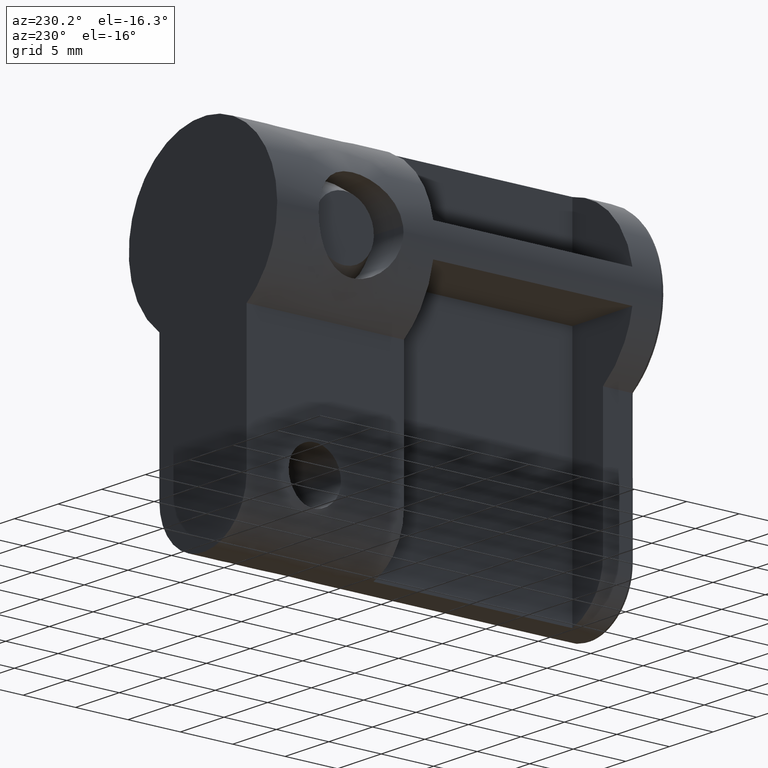
[diagram: clean part render]
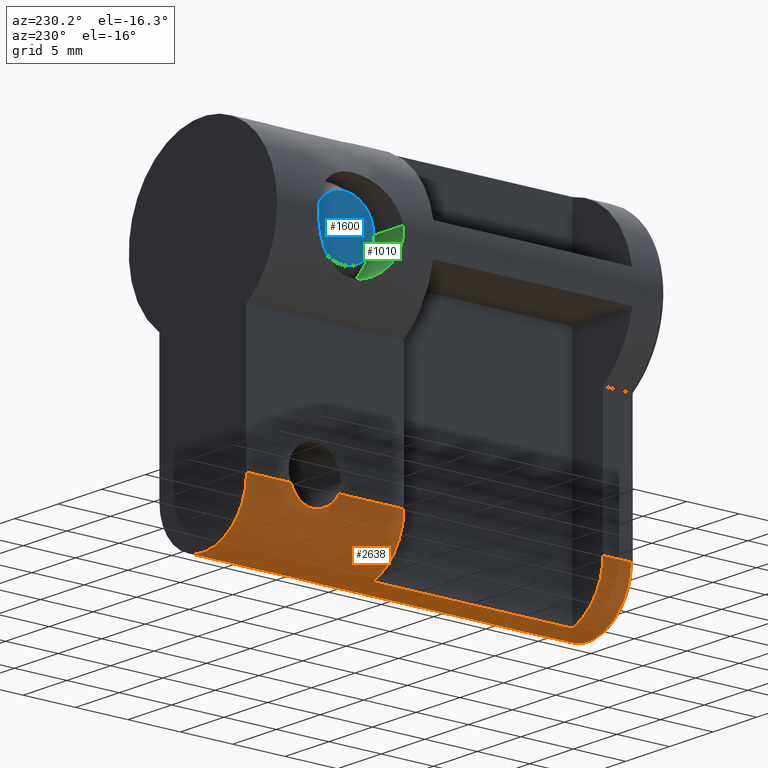
[diagram: same view with three faces highlighted in distinct colors, each labeled with its STEP entity id]
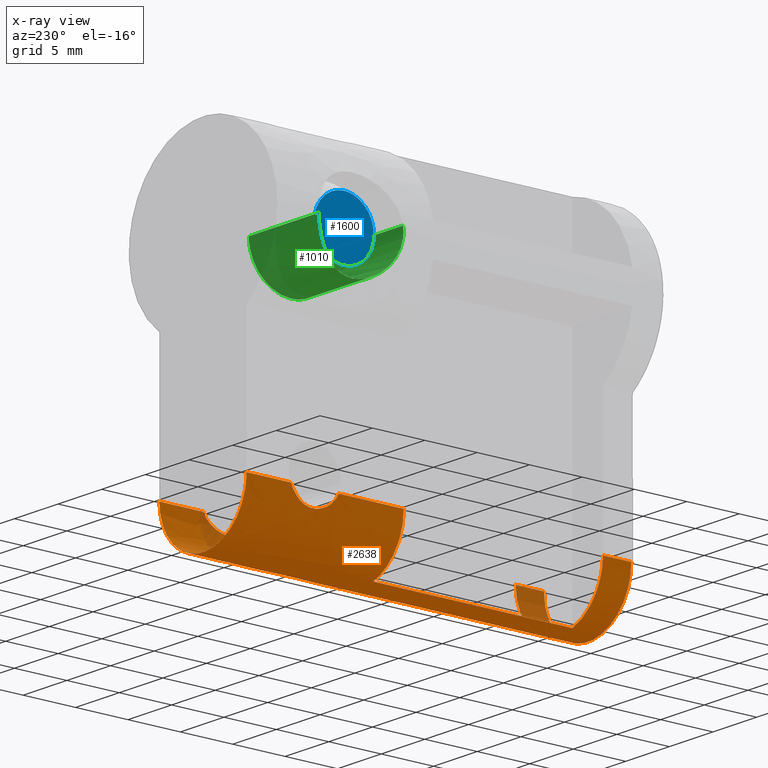
[diagram: x-ray of the same camera — body ghosted, the three highlighted faces saturated]
A machine part, auxiliary view with three faces highlighted in distinct colors.
The next image is the same camera in x-ray (body ghosted, the three faces saturated) — at least one of them is partly hidden behind the body in this view.
Their STEP definitions:

[orange] entity #2638 — the highlighted face is a freeform B-spline surface patch.
#1324=CARTESIAN_POINT('',(5.000000237487150,32.791289404893703,-19.800000940449500));
#1325=VERTEX_POINT('',#1324);
#1348=CARTESIAN_POINT('',(-5.000000237487290,32.791289404893753,-19.800000940449500));
#1349=VERTEX_POINT('',#1348);
#1363=CARTESIAN_POINT('',(-5.000000237487260,28.208713492277251,-19.800000940449500));
#1364=VERTEX_POINT('',#1363);
#1365=CARTESIAN_POINT('',(-5.000000237487280,28.208713492277202,-19.800000940449500));
#1366=CARTESIAN_POINT('',(-5.000000237487281,28.257701408327272,-19.912246357168261));
#1367=CARTESIAN_POINT('',(-4.996237284764753,28.314206020963809,-20.019348305845501));
#1368=CARTESIAN_POINT('',(-4.983057154734889,28.441559112390859,-20.223842496959829));
#1369=CARTESIAN_POINT('',(-4.973631072126937,28.512409815351131,-20.321232679426100));
#1370=CARTESIAN_POINT('',(-4.956471320625495,28.629666574999408,-20.459975160254640));
#1371=CARTESIAN_POINT('',(-4.950222079073935,28.670747119424540,-20.505138123027749));
#1372=CARTESIAN_POINT('',(-4.937122859480202,28.755410553851998,-20.591666873026810));
#1373=CARTESIAN_POINT('',(-4.930260910456302,28.799084712224420,-20.633164826705869));
#1374=CARTESIAN_POINT('',(-4.909099600053796,28.934070789566420,-20.752509637666439));
#1375=CARTESIAN_POINT('',(-4.894227001290981,29.029323833906538,-20.825236445611029));
#1376=CARTESIAN_POINT('',(-4.872113661228085,29.180258595798300,-20.924123575454988));
#1377=CARTESIAN_POINT('',(-4.864774213949248,29.231918278552872,-20.955378188896400));
#1378=CARTESIAN_POINT('',(-4.850380048809369,29.338032447457589,-21.014388901953669));
#1379=CARTESIAN_POINT('',(-4.843394156547617,29.391994594602650,-21.041864015166951));
#1380=CARTESIAN_POINT('',(-4.823443524988742,29.555889118119680,-21.118010365579199));
#1381=CARTESIAN_POINT('',(-4.811451940924974,29.668106446552400,-21.160596939982060));
#1382=CARTESIAN_POINT('',(-4.796426622942588,29.840924784769530,-21.212309775416511));
#1383=CARTESIAN_POINT('',(-4.791910351766362,29.899282393864990,-21.227511121755320));
#1384=CARTESIAN_POINT('',(-4.784014171492890,30.017545238784809,-21.253754201512951));
#1385=CARTESIAN_POINT('',(-4.780623904709782,30.077702386488561,-21.264829522648760));
#1386=CARTESIAN_POINT('',(-4.772456782851843,30.258654134931710,-21.291309059261589));
#1387=CARTESIAN_POINT('',(-4.766941355190445,30.499850779923310,-21.308675347492262));
#1388=CARTESIAN_POINT('',(-4.772445479763514,30.740906779712319,-21.291344585511030));
#1389=CARTESIAN_POINT('',(-4.780590014244322,30.921644709119679,-21.264939959012139));
#1390=CARTESIAN_POINT('',(-4.783980197936810,30.981899255908822,-21.253866070291679));
#1391=CARTESIAN_POINT('',(-4.791881427323570,31.100336475598940,-21.227608287199288));
#1392=CARTESIAN_POINT('',(-4.796402306136503,31.158783237868640,-21.212392646380628));
#1393=CARTESIAN_POINT('',(-4.811447358543230,31.331874039059599,-21.160614347897489));
#1394=CARTESIAN_POINT('',(-4.823460084846209,31.444279694161409,-21.117954298893292));
#1395=CARTESIAN_POINT('',(-4.843451368041214,31.608463283788740,-21.041642067288809));
#1396=CARTESIAN_POINT('',(-4.850467968337422,31.662635920174580,-21.014036731152970));
#1397=CARTESIAN_POINT('',(-4.864840146041358,31.768553159883201,-20.955099536431970));
#1398=CARTESIAN_POINT('',(-4.872170244510359,31.820137484080220,-20.923877529102061));
#1399=CARTESIAN_POINT('',(-4.894262155279455,31.970904990378010,-20.825065203232320));
#1400=CARTESIAN_POINT('',(-4.909129692235236,32.066124666184621,-20.752357844307419));
#1401=CARTESIAN_POINT('',(-4.930296592614642,32.201145495462647,-20.632954595753912));
#1402=CARTESIAN_POINT('',(-4.937162504549043,32.244845471195319,-20.591422529042550));
#1403=CARTESIAN_POINT('',(-4.950272407971531,32.329584194836052,-20.504788010486870));
#1404=CARTESIAN_POINT('',(-4.956515068226191,32.370628675928486,-20.459643209131269));
#1405=CARTESIAN_POINT('',(-4.973649532057092,32.487732452756823,-20.321039695619760));
#1406=CARTESIAN_POINT('',(-4.983066015278488,32.558520752207890,-20.223725944600080));
#1407=CARTESIAN_POINT('',(-4.996236877802528,32.685801597115614,-20.019333684589341));
#1408=CARTESIAN_POINT('',(-5.000000237487281,32.742296647678252,-19.912257449671760));
#1409=CARTESIAN_POINT('',(-5.000000237487280,32.791289404893703,-19.800000940449550));
#1410=B_SPLINE_CURVE_WITH_KNOTS('',3,(#1365,#1366,#1367,#1368,#1369,#1370,#1371,#1372,#1373,#1374,#1375,#1376,#1377,#1378,#1379,#1380,#1381,#1382,#1383,#1384,#1385,#1386,#1387,#1388,#1389,#1390,#1391,#1392,#1393,#1394,#1395,#1396,#1397,#1398,#1399,#1400,#1401,#1402,#1403,#1404,#1405,#1406,#1407,#1408,#1409),.UNSPECIFIED.,.F.,.U.,(4,2,2,2,2,2,2,2,2,2,2,1,2,2,2,2,2,2,2,2,2,2,4),(0.0,0.062500000000006,0.125000000000012,0.156250000000014,0.187500000000017,0.250000000000020,0.281250000000020,0.312500000000021,0.375000000000022,0.406250000000023,0.437500000000023,0.500000000000023,0.562500000000023,0.593750000000023,0.625000000000023,0.687500000000024,0.718750000000022,0.750000000000020,0.812500000000016,0.843750000000014,0.875000000000012,0.937500000000006,1.0),.UNSPECIFIED.);
#1411=EDGE_CURVE('',#1364,#1349,#1410,.T.);
#1437=CARTESIAN_POINT('',(5.000000237487280,28.208713492277251,-19.800000940449500));
#1438=VERTEX_POINT('',#1437);
#1454=CARTESIAN_POINT('',(5.000000237487150,32.791289404893703,-19.800000940449500));
#1455=CARTESIAN_POINT('',(5.000000237487279,32.742301488843601,-19.912246357168250));
#1456=CARTESIAN_POINT('',(4.996237284764752,32.685796876207178,-20.019348305845551));
#1457=CARTESIAN_POINT('',(4.983057154734884,32.558443784780117,-20.223842496959868));
#1458=CARTESIAN_POINT('',(4.973631072126931,32.487593081819831,-20.321232679426132));
#1459=CARTESIAN_POINT('',(4.956471320625489,32.370336322171561,-20.459975160254668));
#1460=CARTESIAN_POINT('',(4.950222079073929,32.329255777746432,-20.505138123027780));
#1461=CARTESIAN_POINT('',(4.937122859480194,32.244592343318978,-20.591666873026838));
#1462=CARTESIAN_POINT('',(4.930260910456294,32.200918184946531,-20.633164826705890));
#1463=CARTESIAN_POINT('',(4.909099600053792,32.065932107604553,-20.752509637666471));
#1464=CARTESIAN_POINT('',(4.894227001290975,31.970679063264441,-20.825236445611051));
#1465=CARTESIAN_POINT('',(4.872113661228081,31.819744301372669,-20.924123575455010));
#1466=CARTESIAN_POINT('',(4.864774213949245,31.768084618618111,-20.955378188896422));
#1467=CARTESIAN_POINT('',(4.850380048809367,31.661970449713369,-21.014388901953680));
#1468=CARTESIAN_POINT('',(4.843394156547611,31.608008302568329,-21.041864015166961));
#1469=CARTESIAN_POINT('',(4.823443524988736,31.444113779051289,-21.118010365579199));
#1470=CARTESIAN_POINT('',(4.811451940924972,31.331896450618562,-21.160596939982060));
#1471=CARTESIAN_POINT('',(4.796426622942588,31.159078112401449,-21.212309775416522));
#1472=CARTESIAN_POINT('',(4.791910351766361,31.100720503305990,-21.227511121755331));
#1473=CARTESIAN_POINT('',(4.784014171492887,30.982457658386181,-21.253754201512962));
#1474=CARTESIAN_POINT('',(4.780623904709782,30.922300510682419,-21.264829522648771));
#1475=CARTESIAN_POINT('',(4.772456782851840,30.741348762239269,-21.291309059261579));
#1476=CARTESIAN_POINT('',(4.766941355190443,30.500152117247659,-21.308675347492262));
#1477=CARTESIAN_POINT('',(4.772445479763513,30.259096117458650,-21.291344585511030));
#1478=CARTESIAN_POINT('',(4.780590014244323,30.078358188051322,-21.264939959012150));
#1479=CARTESIAN_POINT('',(4.783980197936814,30.018103641262151,-21.253866070291679));
#1480=CARTESIAN_POINT('',(4.791881427323573,29.899666421572029,-21.227608287199271));
#1481=CARTESIAN_POINT('',(4.796402306136505,29.841219659302340,-21.212392646380621));
#1482=CARTESIAN_POINT('',(4.811447358543232,29.668128858111370,-21.160614347897479));
#1483=CARTESIAN_POINT('',(4.823460084846209,29.555723203009581,-21.117954298893281));
#1484=CARTESIAN_POINT('',(4.843451368041218,29.391539613382239,-21.041642067288802));
#1485=CARTESIAN_POINT('',(4.850467968337424,29.337366976996400,-21.014036731152949));
#1486=CARTESIAN_POINT('',(4.864840146041360,29.231449737287811,-20.955099536431959));
#1487=CARTESIAN_POINT('',(4.872170244510361,29.179865413090798,-20.923877529102061));
#1488=CARTESIAN_POINT('',(4.894262155279458,29.029097906793002,-20.825065203232310));
#1489=CARTESIAN_POINT('',(4.909129692235235,28.933878230986370,-20.752357844307401));
#1490=CARTESIAN_POINT('',(4.930296592614643,28.798857401708339,-20.632954595753901));
#1491=CARTESIAN_POINT('',(4.937162504549046,28.755157425975678,-20.591422529042539));
#1492=CARTESIAN_POINT('',(4.950272407971535,28.670418702334949,-20.504788010486859));
#1493=CARTESIAN_POINT('',(4.956515068226191,28.629374221242511,-20.459643209131269));
#1494=CARTESIAN_POINT('',(4.973649532057090,28.512270444414170,-20.321039695619749));
#1495=CARTESIAN_POINT('',(4.983066015278491,28.441482144963121,-20.223725944600080));
#1496=CARTESIAN_POINT('',(4.996236877802526,28.314201300055402,-20.019333684589331));
#1497=CARTESIAN_POINT('',(5.000000237487280,28.257706249492710,-19.912257449671660));
#1498=CARTESIAN_POINT('',(5.000000237487280,28.208713492277251,-19.800000940449451));
#1499=B_SPLINE_CURVE_WITH_KNOTS('',3,(#1454,#1455,#1456,#1457,#1458,#1459,#1460,#1461,#1462,#1463,#1464,#1465,#1466,#1467,#1468,#1469,#1470,#1471,#1472,#1473,#1474,#1475,#1476,#1477,#1478,#1479,#1480,#1481,#1482,#1483,#1484,#1485,#1486,#1487,#1488,#1489,#1490,#1491,#1492,#1493,#1494,#1495,#1496,#1497,#1498),.UNSPECIFIED.,.F.,.U.,(4,2,2,2,2,2,2,2,2,2,2,1,2,2,2,2,2,2,2,2,2,2,4),(0.0,0.062500000000001,0.125000000000002,0.156250000000004,0.187500000000005,0.250000000000009,0.281250000000011,0.312500000000013,0.375000000000013,0.406250000000012,0.437500000000012,0.500000000000013,0.562500000000014,0.593750000000013,0.625000000000013,0.687500000000010,0.718750000000009,0.750000000000008,0.812500000000006,0.843750000000005,0.875000000000005,0.937500000000002,1.0),.UNSPECIFIED.);
#1500=EDGE_CURVE('',#1325,#1438,#1499,.T.);
#1608=CARTESIAN_POINT('',(-1.500000071246090,3.000000142405610,-24.569697174082751));
#1609=VERTEX_POINT('',#1608);
#1622=CARTESIAN_POINT('',(-1.500000071246085,22.000001044857001,-24.569697174082751));
#1623=VERTEX_POINT('',#1622);
#1629=CARTESIAN_POINT('',(-1.500000071246090,3.000000142405610,-24.569697174082751));
#1630=CARTESIAN_POINT('',(-1.500000071246085,22.000001044857001,-24.569697174082751));
#1631=QUASI_UNIFORM_CURVE('',1,(#1629,#1630),.UNSPECIFIED.,.F.,.U.);
#1632=EDGE_CURVE('',#1609,#1623,#1631,.T.);
#1642=CARTESIAN_POINT('',(-5.000000237487290,3.000000142405535,-19.800000940449500));
#1643=VERTEX_POINT('',#1642);
#1644=CARTESIAN_POINT('',(-1.500000071246090,3.000000142405610,-24.569697174082751));
#1645=CARTESIAN_POINT('',(-5.000000237487280,3.000000142405535,-23.468998043244326));
#1646=CARTESIAN_POINT('',(-5.000000237487280,3.000000142405535,-19.800000940449500));
#1654=(BOUNDED_CURVE()B_SPLINE_CURVE(2,(#1644,#1645,#1646),.UNSPECIFIED.,.F.,.U.)CURVE()GEOMETRIC_REPRESENTATION_ITEM()QUASI_UNIFORM_CURVE()RATIONAL_B_SPLINE_CURVE((1.0,0.806225774829848,1.0))REPRESENTATION_ITEM(''));
#1655=EDGE_CURVE('',#1609,#1643,#1654,.T.);
#1715=CARTESIAN_POINT('',(-5.000000237487290,22.000001044857001,-19.800000940449500));
#1716=VERTEX_POINT('',#1715);
#1717=CARTESIAN_POINT('',(-5.000000237487280,22.000001044857001,-19.800000940449500));
#1718=CARTESIAN_POINT('',(-5.000000237487278,22.000001044856997,-23.468998043244319));
#1719=CARTESIAN_POINT('',(-1.500000071246066,22.000001044857001,-24.569697174082702));
#1727=(BOUNDED_CURVE()B_SPLINE_CURVE(2,(#1717,#1718,#1719),.UNSPECIFIED.,.F.,.U.)CURVE()GEOMETRIC_REPRESENTATION_ITEM()QUASI_UNIFORM_CURVE()RATIONAL_B_SPLINE_CURVE((1.0,0.806225774829848,1.0))REPRESENTATION_ITEM(''));
#1728=EDGE_CURVE('',#1716,#1623,#1727,.T.);
#1870=CARTESIAN_POINT('',(1.500000071246090,22.000001044857001,-24.569697174082702));
#1871=VERTEX_POINT('',#1870);
#1886=CARTESIAN_POINT('',(1.500000071246090,3.000000142405610,-24.569697174082702));
#1887=VERTEX_POINT('',#1886);
#1893=CARTESIAN_POINT('',(1.500000071246090,22.000001044857001,-24.569697174082702));
#1894=CARTESIAN_POINT('',(1.500000071246090,3.000000142405610,-24.569697174082702));
#1895=QUASI_UNIFORM_CURVE('',1,(#1893,#1894),.UNSPECIFIED.,.F.,.U.);
#1896=EDGE_CURVE('',#1871,#1887,#1895,.T.);
#1906=CARTESIAN_POINT('',(5.000000237487201,3.000000142405645,-19.800000940449500));
#1907=VERTEX_POINT('',#1906);
#1908=CARTESIAN_POINT('',(5.000000237487201,3.000000142405645,-19.800000940449500));
#1909=CARTESIAN_POINT('',(5.000000237487280,3.000000142405646,-23.468998043244319));
#1910=CARTESIAN_POINT('',(1.500000071246088,3.000000142405645,-24.569697174082691));
#1918=(BOUNDED_CURVE()B_SPLINE_CURVE(2,(#1908,#1909,#1910),.UNSPECIFIED.,.F.,.U.)CURVE()GEOMETRIC_REPRESENTATION_ITEM()QUASI_UNIFORM_CURVE()RATIONAL_B_SPLINE_CURVE((1.0,0.806225774829849,1.0))REPRESENTATION_ITEM(''));
#1919=EDGE_CURVE('',#1907,#1887,#1918,.T.);
#1979=CARTESIAN_POINT('',(5.000000237487201,22.000001044857001,-19.800000940449500));
#1980=VERTEX_POINT('',#1979);
#1981=CARTESIAN_POINT('',(1.500000071246086,22.000001044857001,-24.569697174082691));
#1982=CARTESIAN_POINT('',(5.000000237487279,22.000001044857004,-23.468998043244312));
#1983=CARTESIAN_POINT('',(5.000000237487201,22.000001044857001,-19.800000940449500));
#1991=(BOUNDED_CURVE()B_SPLINE_CURVE(2,(#1981,#1982,#1983),.UNSPECIFIED.,.F.,.U.)CURVE()GEOMETRIC_REPRESENTATION_ITEM()QUASI_UNIFORM_CURVE()RATIONAL_B_SPLINE_CURVE((1.0,0.806225774829849,1.0))REPRESENTATION_ITEM(''));
#1992=EDGE_CURVE('',#1871,#1980,#1991,.T.);
#2190=CARTESIAN_POINT('',(-5.000000237487290,0.299999999999967,-19.800000940449500));
#2191=VERTEX_POINT('',#2190);
#2205=CARTESIAN_POINT('',(5.000000237487280,0.299999999999967,-19.800000940449500));
#2206=VERTEX_POINT('',#2205);
#2207=CARTESIAN_POINT('',(5.000000237487280,0.299999999999967,-19.800000940449500));
#2208=CARTESIAN_POINT('',(5.000000237487279,0.299999999999967,-24.800001177936778));
#2209=CARTESIAN_POINT('',(0.0,0.299999999999967,-24.800001177936782));
#2210=CARTESIAN_POINT('',(-5.000000237487279,0.299999999999967,-24.800001177936778));
#2211=CARTESIAN_POINT('',(-5.000000237487280,0.299999999999967,-19.800000940449500));
#2219=(BOUNDED_CURVE()B_SPLINE_CURVE(2,(#2207,#2208,#2209,#2210,#2211),.UNSPECIFIED.,.F.,.U.)B_SPLINE_CURVE_WITH_KNOTS((3,2,3),(0.0,0.500000000000000,1.0),.UNSPECIFIED.)CURVE()GEOMETRIC_REPRESENTATION_ITEM()RATIONAL_B_SPLINE_CURVE((1.0,0.707106781186547,1.0,0.707106781186547,1.0))REPRESENTATION_ITEM(''));
#2220=EDGE_CURVE('',#2206,#2191,#2219,.T.);
#2446=CARTESIAN_POINT('',(5.000000237487280,37.000001757319652,-19.800000940449500));
#2447=VERTEX_POINT('',#2446);
#2455=CARTESIAN_POINT('',(-5.000000237487290,37.000001757319652,-19.800000940449500));
#2456=VERTEX_POINT('',#2455);
#2457=CARTESIAN_POINT('',(-5.000000237487280,37.000001757319652,-19.800000940449500));
#2458=CARTESIAN_POINT('',(-5.000000237487279,37.000001757319652,-24.800001177936778));
#2459=CARTESIAN_POINT('',(0.0,37.000001757319652,-24.800001177936782));
#2460=CARTESIAN_POINT('',(5.000000237487279,37.000001757319652,-24.800001177936778));
#2461=CARTESIAN_POINT('',(5.000000237487280,37.000001757319652,-19.800000940449500));
#2469=(BOUNDED_CURVE()B_SPLINE_CURVE(2,(#2457,#2458,#2459,#2460,#2461),.UNSPECIFIED.,.F.,.U.)B_SPLINE_CURVE_WITH_KNOTS((3,2,3),(0.0,0.500000000000000,1.0),.UNSPECIFIED.)CURVE()GEOMETRIC_REPRESENTATION_ITEM()RATIONAL_B_SPLINE_CURVE((1.0,0.707106781186547,1.0,0.707106781186547,1.0))REPRESENTATION_ITEM(''));
#2470=EDGE_CURVE('',#2456,#2447,#2469,.T.);
#2578=CARTESIAN_POINT('',(4.998286862283683,37.917501801252662,-19.669116192693430));
#2579=CARTESIAN_POINT('',(4.998286862283683,-0.640437545031347,-19.669116192693430));
#2580=CARTESIAN_POINT('',(5.136210608171439,37.917501801252662,-24.936211548620918));
#2581=CARTESIAN_POINT('',(5.136210608171439,-0.640437545031347,-24.936211548620918));
#2582=CARTESIAN_POINT('',(-0.130884747756046,37.917501801252662,-24.798287802733181));
#2583=CARTESIAN_POINT('',(-0.130884747756046,-0.640437545031347,-24.798287802733181));
#2584=CARTESIAN_POINT('',(-5.397980103683524,37.917501801252662,-24.660364056845445));
#2585=CARTESIAN_POINT('',(-5.397980103683524,-0.640437545031347,-24.660364056845445));
#2586=CARTESIAN_POINT('',(-4.984586905420819,37.917501801252662,-19.407705443177260));
#2587=CARTESIAN_POINT('',(-4.984586905420819,-0.640437545031347,-19.407705443177260));
#2595=(BOUNDED_SURFACE()B_SPLINE_SURFACE(1,2,((#2578,#2580,#2582,#2584,#2586),(#2579,#2581,#2583,#2585,#2587)),.UNSPECIFIED.,.F.,.F.,.U.)B_SPLINE_SURFACE_WITH_KNOTS((2,2),(3,2,3),(0.0,38.557939346284009),(0.0,8.592678527467063,17.185357054934130),.UNSPECIFIED.)GEOMETRIC_REPRESENTATION_ITEM()RATIONAL_B_SPLINE_SURFACE(((1.0,0.688354575693754,1.0,0.688354575693754,1.0),(1.0,0.688354575693754,1.0,0.688354575693754,1.0)))REPRESENTATION_ITEM('')SURFACE());
#2596=ORIENTED_EDGE('',*,*,#1728,.F.);
#2597=CARTESIAN_POINT('',(-5.000000237487260,28.208713492277251,-19.800000940449500));
#2598=CARTESIAN_POINT('',(-5.000000237487290,22.000001044857001,-19.800000940449500));
#2599=QUASI_UNIFORM_CURVE('',1,(#2597,#2598),.UNSPECIFIED.,.F.,.U.);
#2600=EDGE_CURVE('',#1364,#1716,#2599,.T.);
#2601=ORIENTED_EDGE('',*,*,#2600,.F.);
#2602=ORIENTED_EDGE('',*,*,#1411,.T.);
#2603=CARTESIAN_POINT('',(-5.000000237487290,37.000001757319652,-19.800000940449500));
#2604=CARTESIAN_POINT('',(-5.000000237487290,32.791289404893753,-19.800000940449500));
#2605=QUASI_UNIFORM_CURVE('',1,(#2603,#2604),.UNSPECIFIED.,.F.,.U.);
#2606=EDGE_CURVE('',#2456,#1349,#2605,.T.);
#2607=ORIENTED_EDGE('',*,*,#2606,.F.);
#2608=ORIENTED_EDGE('',*,*,#2470,.T.);
#2609=CARTESIAN_POINT('',(5.000000237487280,37.000001757319652,-19.800000940449500));
#2610=CARTESIAN_POINT('',(5.000000237487150,32.791289404893703,-19.800000940449500));
#2611=QUASI_UNIFORM_CURVE('',1,(#2609,#2610),.UNSPECIFIED.,.F.,.U.);
#2612=EDGE_CURVE('',#2447,#1325,#2611,.T.);
#2613=ORIENTED_EDGE('',*,*,#2612,.T.);
#2614=ORIENTED_EDGE('',*,*,#1500,.T.);
#2615=CARTESIAN_POINT('',(5.000000237487280,28.208713492277251,-19.800000940449500));
#2616=CARTESIAN_POINT('',(5.000000237487201,22.000001044857001,-19.800000940449500));
#2617=QUASI_UNIFORM_CURVE('',1,(#2615,#2616),.UNSPECIFIED.,.F.,.U.);
#2618=EDGE_CURVE('',#1438,#1980,#2617,.T.);
#2619=ORIENTED_EDGE('',*,*,#2618,.T.);
#2620=ORIENTED_EDGE('',*,*,#1992,.F.);
#2621=ORIENTED_EDGE('',*,*,#1896,.T.);
#2622=ORIENTED_EDGE('',*,*,#1919,.F.);
#2623=CARTESIAN_POINT('',(5.000000237487201,3.000000142405645,-19.800000940449500));
#2624=CARTESIAN_POINT('',(5.000000237487280,0.299999999999967,-19.800000940449500));
#2625=QUASI_UNIFORM_CURVE('',1,(#2623,#2624),.UNSPECIFIED.,.F.,.U.);
#2626=EDGE_CURVE('',#1907,#2206,#2625,.T.);
#2627=ORIENTED_EDGE('',*,*,#2626,.T.);
#2628=ORIENTED_EDGE('',*,*,#2220,.T.);
#2629=CARTESIAN_POINT('',(-5.000000237487290,3.000000142405535,-19.800000940449500));
#2630=CARTESIAN_POINT('',(-5.000000237487290,0.299999999999967,-19.800000940449500));
#2631=QUASI_UNIFORM_CURVE('',1,(#2629,#2630),.UNSPECIFIED.,.F.,.U.);
#2632=EDGE_CURVE('',#1643,#2191,#2631,.T.);
#2633=ORIENTED_EDGE('',*,*,#2632,.F.);
#2634=ORIENTED_EDGE('',*,*,#1655,.F.);
#2635=ORIENTED_EDGE('',*,*,#1632,.T.);
#2636=EDGE_LOOP('',(#2596,#2601,#2602,#2607,#2608,#2613,#2614,#2619,#2620,#2621,#2622,#2627,#2628,#2633,#2634,#2635));
#2637=FACE_OUTER_BOUND('',#2636,.T.);
#2638=ADVANCED_FACE('',(#2637),#2595,.T.);

[blue] entity #1600 — the highlighted face is a freeform B-spline surface patch.
#616=CARTESIAN_POINT('',(-6.549999999995838,31.836529730291112,0.223239622857396));
#617=VERTEX_POINT('',#616);
#623=CARTESIAN_POINT('',(-6.550000000000001,29.000001377339299,2.845299461620750));
#624=VERTEX_POINT('',#623);
#625=CARTESIAN_POINT('',(-6.550000000000001,29.000001377339299,2.845299461620750));
#626=CARTESIAN_POINT('',(-6.550000000000001,31.630169145537984,2.845299461620750));
#627=CARTESIAN_POINT('',(-6.549999999995838,31.836529730291112,0.223239622857396));
#635=(BOUNDED_CURVE()B_SPLINE_CURVE(2,(#625,#626,#627),.UNSPECIFIED.,.F.,.U.)B_SPLINE_CURVE_WITH_KNOTS((3,3),(0.0,0.236331300629924),.UNSPECIFIED.)CURVE()GEOMETRIC_REPRESENTATION_ITEM()RATIONAL_B_SPLINE_CURVE((1.0,0.723120658608527,0.969723356165883))REPRESENTATION_ITEM(''));
#636=EDGE_CURVE('',#624,#617,#635,.T.);
#638=CARTESIAN_POINT('',(-6.549999999995839,26.163473024387489,-0.223239622857397));
#639=VERTEX_POINT('',#638);
#640=CARTESIAN_POINT('',(-6.549999999995838,26.163473024387493,-0.223239622857397));
#641=CARTESIAN_POINT('',(-6.550000000000000,26.154701915718555,-0.111792120339573));
#642=CARTESIAN_POINT('',(-6.550000000000001,26.154701915718551,0.0));
#643=CARTESIAN_POINT('',(-6.550000000000001,26.154701915718558,2.845299461620749));
#644=CARTESIAN_POINT('',(-6.550000000000001,29.000001377339299,2.845299461620750));
#652=(BOUNDED_CURVE()B_SPLINE_CURVE(2,(#640,#641,#642,#643,#644),.UNSPECIFIED.,.F.,.U.)B_SPLINE_CURVE_WITH_KNOTS((3,2,3),(0.736331300629924,0.750000000000000,1.0),.UNSPECIFIED.)CURVE()GEOMETRIC_REPRESENTATION_ITEM()RATIONAL_B_SPLINE_CURVE((0.969723356165883,0.983986122578020,1.0,0.707106781186548,1.0))REPRESENTATION_ITEM(''));
#653=EDGE_CURVE('',#639,#624,#652,.T.);
#686=CARTESIAN_POINT('',(-6.550000000000001,29.000001377339299,-2.845299461620750));
#687=VERTEX_POINT('',#686);
#688=CARTESIAN_POINT('',(-6.550000000000001,29.000001377339299,-2.845299461620750));
#689=CARTESIAN_POINT('',(-6.550000000000001,26.369833609140620,-2.845299461620749));
#690=CARTESIAN_POINT('',(-6.549999999995839,26.163473024387496,-0.223239622857397));
#698=(BOUNDED_CURVE()B_SPLINE_CURVE(2,(#688,#689,#690),.UNSPECIFIED.,.F.,.U.)B_SPLINE_CURVE_WITH_KNOTS((3,3),(0.500000000000000,0.736331300629924),.UNSPECIFIED.)CURVE()GEOMETRIC_REPRESENTATION_ITEM()RATIONAL_B_SPLINE_CURVE((1.0,0.723120658608528,0.969723356165882))REPRESENTATION_ITEM(''));
#699=EDGE_CURVE('',#687,#639,#698,.T.);
#701=CARTESIAN_POINT('',(-6.549999999995838,31.836529730291108,0.223239622857396));
#702=CARTESIAN_POINT('',(-6.550000000000001,31.845300838960050,0.111792120339572));
#703=CARTESIAN_POINT('',(-6.550000000000001,31.845300838960050,0.0));
#704=CARTESIAN_POINT('',(-6.550000000000001,31.845300838960057,-2.845299461620749));
#705=CARTESIAN_POINT('',(-6.550000000000001,29.000001377339299,-2.845299461620750));
#713=(BOUNDED_CURVE()B_SPLINE_CURVE(2,(#701,#702,#703,#704,#705),.UNSPECIFIED.,.F.,.U.)B_SPLINE_CURVE_WITH_KNOTS((3,2,3),(0.236331300629924,0.250000000000000,0.500000000000000),.UNSPECIFIED.)CURVE()GEOMETRIC_REPRESENTATION_ITEM()RATIONAL_B_SPLINE_CURVE((0.969723356165883,0.983986122578020,1.0,0.707106781186548,1.0))REPRESENTATION_ITEM(''));
#714=EDGE_CURVE('',#617,#687,#713,.T.);
#1589=CARTESIAN_POINT('',(-6.550000000000001,25.871324345284901,-3.129544920226449));
#1590=CARTESIAN_POINT('',(-6.550000000000001,25.871324345284901,3.129545021982288));
#1591=CARTESIAN_POINT('',(-6.550000000000001,32.128677493591162,-3.129544920226449));
#1592=CARTESIAN_POINT('',(-6.550000000000001,32.128677493591162,3.129545021982288));
#1593=B_SPLINE_SURFACE_WITH_KNOTS('',1,1,((#1589,#1591),(#1590,#1592)),.UNSPECIFIED.,.F.,.F.,.U.,(2,2),(2,2),(0.0,6.259089942208737),(0.0,6.257353148306251),.UNSPECIFIED.);
#1594=ORIENTED_EDGE('',*,*,#636,.T.);
#1595=ORIENTED_EDGE('',*,*,#714,.T.);
#1596=ORIENTED_EDGE('',*,*,#699,.T.);
#1597=ORIENTED_EDGE('',*,*,#653,.T.);
#1598=EDGE_LOOP('',(#1594,#1595,#1596,#1597));
#1599=FACE_OUTER_BOUND('',#1598,.T.);
#1600=ADVANCED_FACE('',(#1599),#1593,.T.);

[green] entity #1010 — the highlighted face is a freeform B-spline surface patch.
#740=CARTESIAN_POINT('',(-0.500000403728021,24.981322914644561,0.502717586350981));
#741=VERTEX_POINT('',#740);
#755=CARTESIAN_POINT('',(-8.485117801995655,24.981322156465449,0.502719607588874));
#756=VERTEX_POINT('',#755);
#757=CARTESIAN_POINT('',(-0.500000403728021,24.981322914644561,0.502717586350981));
#758=CARTESIAN_POINT('',(-8.485117801995655,24.981322156465449,0.502719607588874));
#759=QUASI_UNIFORM_CURVE('',1,(#757,#758),.UNSPECIFIED.,.F.,.U.);
#760=EDGE_CURVE('',#741,#756,#759,.T.);
#801=CARTESIAN_POINT('',(-8.499926974185843,33.049847581866658,-0.035342472395926));
#802=VERTEX_POINT('',#801);
#845=CARTESIAN_POINT('',(-0.500000403728329,33.049847358106362,-0.035342470469212));
#846=VERTEX_POINT('',#845);
#847=CARTESIAN_POINT('',(-0.500000403728329,33.049847358106362,-0.035342470469212));
#848=CARTESIAN_POINT('',(-8.499926974185843,33.049847581866658,-0.035342472395926));
#849=QUASI_UNIFORM_CURVE('',1,(#847,#848),.UNSPECIFIED.,.F.,.U.);
#850=EDGE_CURVE('',#846,#802,#849,.T.);
#870=CARTESIAN_POINT('',(-0.300000435929569,33.049847358106547,-0.035342470447084));
#871=CARTESIAN_POINT('',(-0.300000435929569,33.014504887659470,-4.085188451214328));
#872=CARTESIAN_POINT('',(-0.300000435929569,28.964658906892218,-4.049845980767244));
#873=CARTESIAN_POINT('',(-0.300000435929569,24.914812926124974,-4.014503510320159));
#874=CARTESIAN_POINT('',(-0.300000435929569,24.950155396572061,0.035342470447084));
#875=CARTESIAN_POINT('',(-0.300000435929569,24.952202638475068,0.269933156601732));
#876=CARTESIAN_POINT('',(-0.300000435929569,24.981323020468906,0.502718432301145));
#877=CARTESIAN_POINT('',(-8.704999082672437,33.049847358106547,-0.035342470447084));
#878=CARTESIAN_POINT('',(-8.704999082672437,33.014504887659470,-4.085188451214328));
#879=CARTESIAN_POINT('',(-8.704999082672437,28.964658906892218,-4.049845980767244));
#880=CARTESIAN_POINT('',(-8.704999082672437,24.914812926124974,-4.014503510320159));
#881=CARTESIAN_POINT('',(-8.704999082672437,24.950155396572061,0.035342470447084));
#882=CARTESIAN_POINT('',(-8.704999082672437,24.952202638475068,0.269933156601732));
#883=CARTESIAN_POINT('',(-8.704999082672437,24.981323020468906,0.502718432301145));
#891=(BOUNDED_SURFACE()B_SPLINE_SURFACE(2,1,((#870,#877),(#871,#878),(#872,#879),(#873,#880),(#874,#881),(#875,#882),(#876,#883)),.UNSPECIFIED.,.F.,.F.,.U.)B_SPLINE_SURFACE_WITH_KNOTS((3,2,2,3),(2,2),(0.0,6.710260029164370,13.420520058328741,13.957340860661891),(0.0,8.404998646742868),.UNSPECIFIED.)GEOMETRIC_REPRESENTATION_ITEM()RATIONAL_B_SPLINE_SURFACE(((1.0,1.0),(0.707106781186548,0.707106781186548),(1.0,1.0),(0.707106781186548,0.707106781186548),(1.0,1.0),(0.976568542494924,0.976568542494924),(0.956886118190660,0.956886118190660)))REPRESENTATION_ITEM('')SURFACE());
#892=CARTESIAN_POINT('',(-0.500000403728329,29.000001377339299,-4.050000192364675));
#893=VERTEX_POINT('',#892);
#894=CARTESIAN_POINT('',(-0.500000403728021,24.981322914644561,0.502717586350981));
#895=CARTESIAN_POINT('',(-0.500000403728329,24.950001184974628,0.252334112642904));
#896=CARTESIAN_POINT('',(-0.500000403728329,24.950001184974631,0.0));
#897=CARTESIAN_POINT('',(-0.500000403728329,24.950001184974631,-4.050000192364675));
#898=CARTESIAN_POINT('',(-0.500000403728329,29.000001377339299,-4.050000192364675));
#906=(BOUNDED_CURVE()B_SPLINE_CURVE(2,(#894,#895,#896,#897,#898),.UNSPECIFIED.,.F.,.U.)B_SPLINE_CURVE_WITH_KNOTS((3,2,3),(0.228526142030780,0.250000000000000,0.500000000000000),.UNSPECIFIED.)CURVE()GEOMETRIC_REPRESENTATION_ITEM()RATIONAL_B_SPLINE_CURVE((0.954005568061190,0.974841810476208,1.0,0.707106781186548,1.0))REPRESENTATION_ITEM(''));
#907=EDGE_CURVE('',#741,#893,#906,.T.);
#908=ORIENTED_EDGE('',*,*,#907,.T.);
#909=CARTESIAN_POINT('',(-0.500000403728329,29.000001377339299,-4.050000192364675));
#910=CARTESIAN_POINT('',(-0.500000403728329,33.014811970898364,-4.050000192364674));
#911=CARTESIAN_POINT('',(-0.500000403728329,33.049847358106362,-0.035342470469212));
#919=(BOUNDED_CURVE()B_SPLINE_CURVE(2,(#909,#910,#911),.UNSPECIFIED.,.F.,.U.)B_SPLINE_CURVE_WITH_KNOTS((3,3),(0.500000000000000,0.748460105663089),.UNSPECIFIED.)CURVE()GEOMETRIC_REPRESENTATION_ITEM()RATIONAL_B_SPLINE_CURVE((1.0,0.708910879622430,0.996414028095952))REPRESENTATION_ITEM(''));
#920=EDGE_CURVE('',#893,#846,#919,.T.);
#921=ORIENTED_EDGE('',*,*,#920,.T.);
#922=ORIENTED_EDGE('',*,*,#850,.T.);
#923=CARTESIAN_POINT('',(-7.473118847257021,29.000001377339309,-4.050000192364676));
#924=VERTEX_POINT('',#923);
#925=CARTESIAN_POINT('',(-8.499926974185843,33.049847581866658,-0.035342472395926));
#926=CARTESIAN_POINT('',(-8.499429401889854,33.048805205402672,-0.155066887486194));
#927=CARTESIAN_POINT('',(-8.496402815987469,33.042458789751173,-0.274801443088917));
#928=CARTESIAN_POINT('',(-8.487726480417086,33.024181889407792,-0.461520651354081));
#929=CARTESIAN_POINT('',(-8.483820190147027,33.015941705397339,-0.528498258988071));
#930=CARTESIAN_POINT('',(-8.474412201808509,32.996028637749014,-0.662460008105268));
#931=CARTESIAN_POINT('',(-8.468913278377974,32.984361209754212,-0.729325426792644));
#932=CARTESIAN_POINT('',(-8.437875592229601,32.918218141118317,-1.059563899427965));
#933=CARTESIAN_POINT('',(-8.401531544810865,32.840131232325760,-1.313965985264461));
#934=CARTESIAN_POINT('',(-8.344331156732658,32.712262183419973,-1.620504215670678));
#935=CARTESIAN_POINT('',(-8.332300851954244,32.685160027010760,-1.681233458177409));
#936=CARTESIAN_POINT('',(-8.307120950894067,32.627867868619553,-1.801534050632814));
#937=CARTESIAN_POINT('',(-8.293960867016518,32.597651499389762,-1.861132430505379));
#938=CARTESIAN_POINT('',(-8.253346249305217,32.503348116524307,-2.036334513004771));
#939=CARTESIAN_POINT('',(-8.224628802305873,32.435325065413373,-2.149002831352643));
#940=CARTESIAN_POINT('',(-8.164701982170826,32.289270044351397,-2.366510859306747));
#941=CARTESIAN_POINT('',(-8.133490689297673,32.211237373570157,-2.471349524699298));
#942=CARTESIAN_POINT('',(-8.085380079302578,32.086639274066272,-2.622869409117496));
#943=CARTESIAN_POINT('',(-8.069127623694229,32.043845706455080,-2.672417781916747));
#944=CARTESIAN_POINT('',(-8.036290606566336,31.955696626449271,-2.769597569211765));
#945=CARTESIAN_POINT('',(-8.019667553314179,31.910232960946519,-2.817335320091511));
#946=CARTESIAN_POINT('',(-7.936469226372107,31.677725528980812,-3.049834227030061));
#947=CARTESIAN_POINT('',(-7.870087084645072,31.476631917704790,-3.215098445958286));
#948=CARTESIAN_POINT('',(-7.776087518798009,31.151922646688771,-3.433474949931255));
#949=CARTESIAN_POINT('',(-7.745685976990927,31.039809414980240,-3.501304130902738));
#950=CARTESIAN_POINT('',(-7.702224782965255,30.865458163885378,-3.595404568059058));
#951=CARTESIAN_POINT('',(-7.688057875946310,30.806140340553060,-3.625573072514770));
#952=CARTESIAN_POINT('',(-7.660771088675724,30.686215398046219,-3.682879353841835));
#953=CARTESIAN_POINT('',(-7.647673002590818,30.625721160091970,-3.709974975410661));
#954=CARTESIAN_POINT('',(-7.585141989636723,30.320591359506921,-3.837783840968295));
#955=CARTESIAN_POINT('',(-7.544575068802075,30.068053987049261,-3.915738310561633));
#956=CARTESIAN_POINT('',(-7.502477934290186,29.675706215023400,-3.995464286465696));
#957=CARTESIAN_POINT('',(-7.491561758140353,29.542432876226290,-4.015812524635003));
#958=CARTESIAN_POINT('',(-7.476844747472854,29.271923669117960,-4.043147342261227));
#959=CARTESIAN_POINT('',(-7.473118847257021,29.135977663762819,-4.050000192364675));
#960=CARTESIAN_POINT('',(-7.473118847257021,29.000001377339299,-4.050000192364676));
#961=B_SPLINE_CURVE_WITH_KNOTS('',3,(#925,#926,#927,#928,#929,#930,#931,#932,#933,#934,#935,#936,#937,#938,#939,#940,#941,#942,#943,#944,#945,#946,#947,#948,#949,#950,#951,#952,#953,#954,#955,#956,#957,#958,#959,#960),.UNSPECIFIED.,.F.,.U.,(4,2,2,2,2,2,2,2,2,2,2,2,2,2,2,2,2,4),(0.751656879881306,0.765624999999998,0.773437499999998,0.781249999999999,0.812500000000000,0.820312500000000,0.828125000000000,0.843750000000000,0.859375000000000,0.867187500000001,0.875000000000001,0.906250000000000,0.921875000000000,0.929687500000000,0.937500000000000,0.968750000000000,0.984375000000000,1.0),.UNSPECIFIED.);
#962=EDGE_CURVE('',#802,#924,#961,.T.);
#963=ORIENTED_EDGE('',*,*,#962,.T.);
#964=CARTESIAN_POINT('',(-7.473118847257021,29.000001377339309,-4.050000192364676));
#965=CARTESIAN_POINT('',(-7.473118743421347,28.728048832438120,-4.050000202011431));
#966=CARTESIAN_POINT('',(-7.487979998771393,28.461623981331421,-4.022897265331244));
#967=CARTESIAN_POINT('',(-7.529684478666449,28.069664919680150,-3.943949602930808));
#968=CARTESIAN_POINT('',(-7.546818239343638,27.940299552250060,-3.911199638383712));
#969=CARTESIAN_POINT('',(-7.576975879218984,27.748176033371131,-3.852261949139711));
#970=CARTESIAN_POINT('',(-7.587775539929683,27.684464321928729,-3.830966417043737));
#971=CARTESIAN_POINT('',(-7.610502149865948,27.559152993357571,-3.785617164464464));
#972=CARTESIAN_POINT('',(-7.622457791274134,27.497361060928021,-3.761507738772393));
#973=CARTESIAN_POINT('',(-7.684878236914220,27.192565761032920,-3.633943909686824));
#974=CARTESIAN_POINT('',(-7.743227490185845,26.961924034332721,-3.509679948575003));
#975=CARTESIAN_POINT('',(-7.822104525869990,26.689035895601801,-3.326598683365758));
#976=CARTESIAN_POINT('',(-7.838219786662709,26.635108365163639,-3.288480007714175));
#977=CARTESIAN_POINT('',(-7.870677702973227,26.529657643410051,-3.210018911048935));
#978=CARTESIAN_POINT('',(-7.887027478390884,26.478099223334379,-3.169664354814118));
#979=CARTESIAN_POINT('',(-7.936263350112089,26.326822396713499,-3.045268919624781));
#980=CARTESIAN_POINT('',(-7.969334172467638,26.230492576360639,-2.957905476888640));
#981=CARTESIAN_POINT('',(-8.035096532310602,26.046584637437430,-2.774295044122919));
#982=CARTESIAN_POINT('',(-8.067789989055582,25.959006910004710,-2.678048340681827));
#983=CARTESIAN_POINT('',(-8.115920736073864,25.834221080249499,-2.526777983828002));
#984=CARTESIAN_POINT('',(-8.131812851057722,25.793724987988401,-2.475202128373993));
#985=CARTESIAN_POINT('',(-8.163188240814066,25.714963861334780,-2.369675537502602));
#986=CARTESIAN_POINT('',(-8.178685820839188,25.676667018416161,-2.315660690938752));
#987=CARTESIAN_POINT('',(-8.254070139720149,25.492838357588649,-2.042473316952804));
#988=CARTESIAN_POINT('',(-8.308318001413689,25.368331784696391,-1.811897853462369));
#989=CARTESIAN_POINT('',(-8.376782817792940,25.215148594284660,-1.447329032992068));
#990=CARTESIAN_POINT('',(-8.397453590758792,25.169728143873769,-1.322667306912806));
#991=CARTESIAN_POINT('',(-8.424709288097676,25.110455001961679,-1.130668614659948));
#992=CARTESIAN_POINT('',(-8.433191382061269,25.092128496738798,-1.065622114941447));
#993=CARTESIAN_POINT('',(-8.448642501220059,25.058895598759459,-0.935257144488000));
#994=CARTESIAN_POINT('',(-8.455627234707889,25.043954300628251,-0.869866037125239));
#995=CARTESIAN_POINT('',(-8.486801067345624,24.977497390655390,-0.541878189598131));
#996=CARTESIAN_POINT('',(-8.499766513635565,24.950486069845599,-0.276210979223905));
#997=CARTESIAN_POINT('',(-8.500050832391006,24.949889084142200,0.060064377416604));
#998=CARTESIAN_POINT('',(-8.499309815449642,24.951443432484979,0.127530687845381));
#999=CARTESIAN_POINT('',(-8.496200122680971,24.957975717434461,0.262895178999812));
#1000=CARTESIAN_POINT('',(-8.493825174805933,24.962966912550790,0.330767059093705));
#1001=CARTESIAN_POINT('',(-8.489032961750358,24.973062399608072,0.433007494432479));
#1002=CARTESIAN_POINT('',(-8.487179264441368,24.976970132616280,0.467923157374031));
#1003=CARTESIAN_POINT('',(-8.485117801995655,24.981322156465449,0.502719607588874));
#1004=B_SPLINE_CURVE_WITH_KNOTS('',3,(#964,#965,#966,#967,#968,#969,#970,#971,#972,#973,#974,#975,#976,#977,#978,#979,#980,#981,#982,#983,#984,#985,#986,#987,#988,#989,#990,#991,#992,#993,#994,#995,#996,#997,#998,#999,#1000,#1001,#1002,#1003),.UNSPECIFIED.,.F.,.U.,(4,2,2,2,2,2,2,2,2,2,2,2,2,2,2,2,2,2,2,4),(0.0,0.031250000000000,0.046875000000001,0.054687500000001,0.062500000000001,0.093750000000001,0.101562500000001,0.109375000000001,0.125000000000001,0.140625000000001,0.148437500000001,0.156250000000001,0.187500000000001,0.203125000000001,0.210937500000001,0.218750000000001,0.250000000000001,0.257812500000000,0.265625000000000,0.269697946776787),.UNSPECIFIED.);
#1005=EDGE_CURVE('',#924,#756,#1004,.T.);
#1006=ORIENTED_EDGE('',*,*,#1005,.T.);
#1007=ORIENTED_EDGE('',*,*,#760,.F.);
#1008=EDGE_LOOP('',(#908,#921,#922,#963,#1006,#1007));
#1009=FACE_OUTER_BOUND('',#1008,.T.);
#1010=ADVANCED_FACE('',(#1009),#891,.F.);